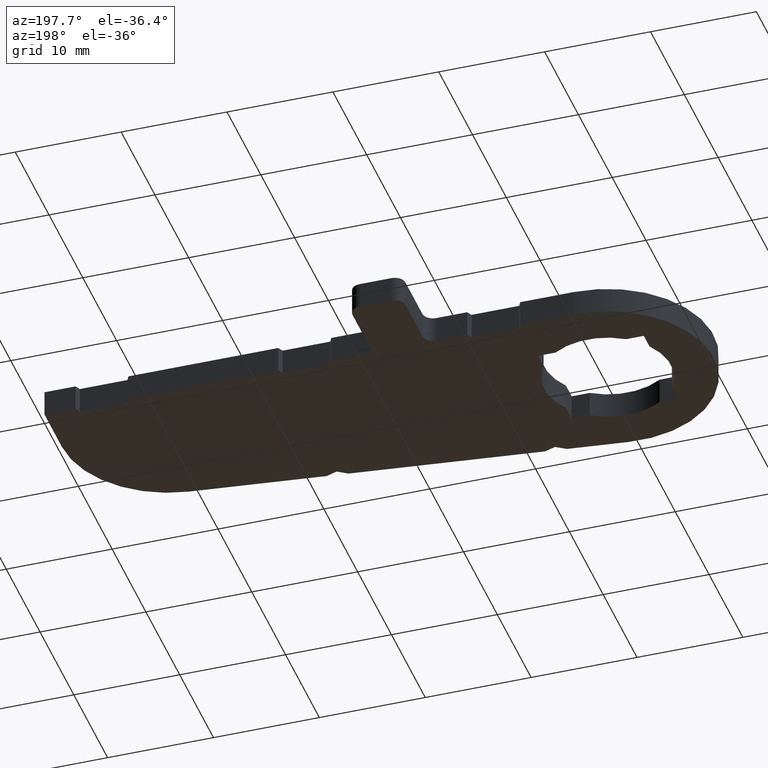
[diagram: clean part render]
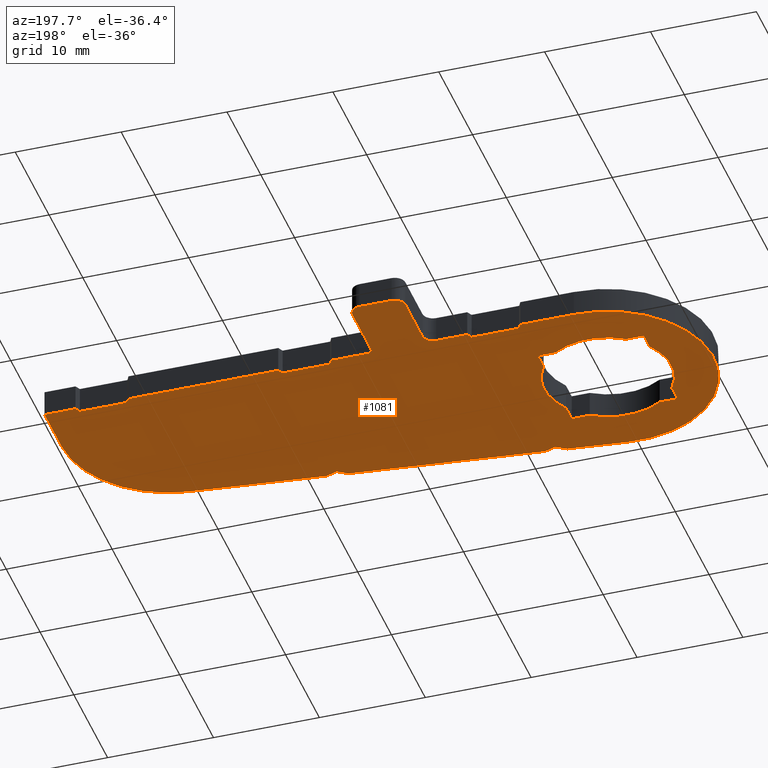
[diagram: same view with one face highlighted and labeled with its STEP entity id]
A machine part, auxiliary view. The second image highlights one B-rep face of the part: STEP entity #1081.
In plain terms, the highlighted planar face has unit normal (0, 0, 1).
Its self-contained STEP definition (entity closure, byte-faithful):
#7=CARTESIAN_POINT('',(46.825017492111371,9.499975159296298,-2.500000000000000));
#8=VERTEX_POINT('',#7);
#9=CARTESIAN_POINT('',(42.325017492111371,9.499974948719171,-2.500000000000000));
#10=VERTEX_POINT('',#9);
#11=CARTESIAN_POINT('',(46.825017492111371,9.499975159296298,-2.500000000000000));
#12=DIRECTION('',(-0.999999999999999,-0.000000046794917,0.0));
#13=VECTOR('',#12,4.500000000000004);
#14=LINE('',#11,#13);
#15=EDGE_CURVE('',#8,#10,#14,.T.);
#47=CARTESIAN_POINT('',(42.075017468713938,9.999974937021250,-2.500000000000000));
#48=VERTEX_POINT('',#47);
#49=CARTESIAN_POINT('',(42.325017492111371,9.499974948719171,-2.500000000000000));
#50=DIRECTION('',(-0.447213637353989,0.894427170072899,0.0));
#51=VECTOR('',#50,0.559016994375660);
#52=LINE('',#49,#51);
#53=EDGE_CURVE('',#10,#48,#52,.T.);
#78=CARTESIAN_POINT('',(27.925017457015471,9.999974274872727,-2.500000000000000));
#79=VERTEX_POINT('',#78);
#80=CARTESIAN_POINT('',(42.075017468713938,9.999974937021221,-2.500000000000000));
#81=DIRECTION('',(-0.999999999999999,-0.000000046794947,0.0));
#82=VECTOR('',#81,14.150000011698483);
#83=LINE('',#80,#82);
#84=EDGE_CURVE('',#48,#79,#83,.T.);
#109=CARTESIAN_POINT('',(27.675017480412905,9.499974263174124,-2.500000000000000));
#110=VERTEX_POINT('',#109);
#111=CARTESIAN_POINT('',(27.925017457015471,9.999974274872727,-2.500000000000000));
#112=DIRECTION('',(-0.447213553645438,-0.894427211927175,0.0));
#113=VECTOR('',#112,0.559016994374846);
#114=LINE('',#111,#113);
#115=EDGE_CURVE('',#79,#110,#114,.T.);
#140=CARTESIAN_POINT('',(23.175017480412905,9.499974052596997,-2.500000000000000));
#141=VERTEX_POINT('',#140);
#142=CARTESIAN_POINT('',(27.675017480412905,9.499974263174124,-2.500000000000000));
#143=DIRECTION('',(-0.999999999999999,-0.000000046794917,0.0));
#144=VECTOR('',#143,4.500000000000004);
#145=LINE('',#142,#144);
#146=EDGE_CURVE('',#110,#141,#145,.T.);
#171=CARTESIAN_POINT('',(22.925017457015471,9.999974040898167,-2.500000000000000));
#172=VERTEX_POINT('',#171);
#173=CARTESIAN_POINT('',(23.175017480412905,9.499974052596997,-2.500000000000000));
#174=DIRECTION('',(-0.447213637354640,0.894427170072574,0.0));
#175=VECTOR('',#174,0.559016994374846);
#176=LINE('',#173,#175);
#177=EDGE_CURVE('',#141,#172,#176,.T.);
#202=CARTESIAN_POINT('',(19.000017462864704,9.999973857228213,-2.500000000000000));
#203=VERTEX_POINT('',#202);
#204=CARTESIAN_POINT('',(22.925017457015471,9.999974040898167,-2.500000000000000));
#205=DIRECTION('',(-0.999999999999999,-0.000000046794893,0.0));
#206=VECTOR('',#205,3.924999994150771);
#207=LINE('',#204,#206);
#208=EDGE_CURVE('',#172,#203,#207,.T.);
#233=CARTESIAN_POINT('',(19.000017182095505,15.999973857228213,-2.500000000000000));
#234=VERTEX_POINT('',#233);
#235=CARTESIAN_POINT('',(19.000017462864704,9.999973857228213,-2.500000000000000));
#236=DIRECTION('',(-0.000000046794867,0.999999999999999,0.0));
#237=VECTOR('',#236,6.000000000000006);
#238=LINE('',#235,#237);
#239=EDGE_CURVE('',#203,#234,#238,.T.);
#264=CARTESIAN_POINT('',(18.000017135300411,16.999973810433346,-2.500000000000000));
#265=VERTEX_POINT('',#264);
#266=CARTESIAN_POINT('',(18.000017182095505,15.999973810433346,-2.500000000000000));
#267=DIRECTION('',(0.0,0.0,1.0));
#268=DIRECTION('',(1.0,0.0,0.0));
#269=AXIS2_PLACEMENT_3D('',#266,#267,#268);
#270=CIRCLE('',#269,1.0);
#271=EDGE_CURVE('',#234,#265,#270,.T.);
#297=CARTESIAN_POINT('',(15.000017135300411,16.999973670048746,-2.500000000000000));
#298=VERTEX_POINT('',#297);
#299=CARTESIAN_POINT('',(18.000017135300411,16.999973810433346,-2.500000000000000));
#300=DIRECTION('',(-0.999999999999999,-0.000000046794867,0.0));
#301=VECTOR('',#300,3.000000000000003);
#302=LINE('',#299,#301);
#303=EDGE_CURVE('',#265,#298,#302,.T.);
#328=CARTESIAN_POINT('',(14.000017182095505,15.999973623253879,-2.500000000000000));
#329=VERTEX_POINT('',#328);
#330=CARTESIAN_POINT('',(15.000017182095505,15.999973670048746,-2.500000000000000));
#331=DIRECTION('',(0.0,0.0,1.0));
#332=DIRECTION('',(1.0,0.0,0.0));
#333=AXIS2_PLACEMENT_3D('',#330,#331,#332);
#334=CIRCLE('',#333,1.0);
#335=EDGE_CURVE('',#298,#329,#334,.T.);
#361=CARTESIAN_POINT('',(14.000017416069838,10.999973623253879,-2.500000000000000));
#362=VERTEX_POINT('',#361);
#363=CARTESIAN_POINT('',(14.000017182095505,15.999973623253879,-2.500000000000000));
#364=DIRECTION('',(0.000000046794867,-0.999999999999999,0.0));
#365=VECTOR('',#364,5.000000000000005);
#366=LINE('',#363,#365);
#367=EDGE_CURVE('',#329,#362,#366,.T.);
#392=CARTESIAN_POINT('',(13.000017462864704,9.999973576459013,-2.500000000000000));
#393=VERTEX_POINT('',#392);
#394=CARTESIAN_POINT('',(13.000017416069838,10.999973576459013,-2.500000000000000));
#395=DIRECTION('',(0.0,0.0,-1.0));
#396=DIRECTION('',(1.0,0.0,0.0));
#397=AXIS2_PLACEMENT_3D('',#394,#395,#396);
#398=CIRCLE('',#397,1.0);
#399=EDGE_CURVE('',#362,#393,#398,.T.);
#425=CARTESIAN_POINT('',(10.075017468714165,9.999973439583926,-2.500000000000000));
#426=VERTEX_POINT('',#425);
#427=CARTESIAN_POINT('',(13.000017462864704,9.999973576459013,-2.500000000000000));
#428=DIRECTION('',(-0.999999999999999,-0.000000046794902,0.0));
#429=VECTOR('',#428,2.924999994150543);
#430=LINE('',#427,#429);
#431=EDGE_CURVE('',#393,#426,#430,.T.);
#456=CARTESIAN_POINT('',(9.825017492111599,9.499973427885095,-2.500000000000000));
#457=VERTEX_POINT('',#456);
#458=CARTESIAN_POINT('',(10.075017468714165,9.999973439583926,-2.500000000000000));
#459=DIRECTION('',(-0.447213553645275,-0.894427211927256,0.0));
#460=VECTOR('',#459,0.559016994375050);
#461=LINE('',#458,#460);
#462=EDGE_CURVE('',#426,#457,#461,.T.);
#487=CARTESIAN_POINT('',(5.325017492111599,9.499973217308195,-2.500000000000000));
#488=VERTEX_POINT('',#487);
#489=CARTESIAN_POINT('',(9.825017492111599,9.499973427885095,-2.500000000000000));
#490=DIRECTION('',(-0.999999999999999,-0.000000046794867,0.0));
#491=VECTOR('',#490,4.500000000000004);
#492=LINE('',#489,#491);
#493=EDGE_CURVE('',#457,#488,#492,.T.);
#518=CARTESIAN_POINT('',(5.075017468714165,9.999973205609365,-2.500000000000000));
#519=VERTEX_POINT('',#518);
#520=CARTESIAN_POINT('',(5.325017492111599,9.499973217308195,-2.500000000000000));
#521=DIRECTION('',(-0.447213637354640,0.894427170072574,0.0));
#522=VECTOR('',#521,0.559016994374846);
#523=LINE('',#520,#522);
#524=EDGE_CURVE('',#488,#519,#523,.T.);
#549=CARTESIAN_POINT('',(0.000017462864719,9.999972968125292,-2.500000000000000));
#550=VERTEX_POINT('',#549);
#551=CARTESIAN_POINT('',(5.075017468714165,9.999973205609365,-2.500000000000000));
#552=DIRECTION('',(-0.999999999999999,-0.000000046794891,0.0));
#553=VECTOR('',#552,5.075000005849466);
#554=LINE('',#551,#553);
#555=EDGE_CURVE('',#519,#550,#554,.T.);
#580=CARTESIAN_POINT('',(1.207432200476475,-9.926866951074373,-2.500000000000000));
#581=VERTEX_POINT('',#580);
#582=CARTESIAN_POINT('',(0.000017930813826,-0.000027031874708,-2.500000000000000));
#583=DIRECTION('',(0.0,0.0,1.0));
#584=DIRECTION('',(1.0,0.0,0.0));
#585=AXIS2_PLACEMENT_3D('',#582,#583,#584);
#586=CIRCLE('',#585,10.0);
#587=EDGE_CURVE('',#550,#581,#586,.T.);
#613=CARTESIAN_POINT('',(6.807334365896210,-9.245743669317164,-2.500000000000000));
#614=VERTEX_POINT('',#613);
#615=CARTESIAN_POINT('',(1.207432200476475,-9.926866951074373,-2.500000000000000));
#616=DIRECTION('',(0.992683991919963,0.120741426966250,0.0));
#617=VECTOR('',#616,5.641173032909157);
#618=LINE('',#615,#617);
#619=EDGE_CURVE('',#581,#614,#618,.T.);
#644=CARTESIAN_POINT('',(7.739647644330638,-8.628660246392343,-2.500000000000000));
#645=VERTEX_POINT('',#644);
#646=CARTESIAN_POINT('',(6.807334365896210,-9.245743669317164,-2.500000000000000));
#647=DIRECTION('',(0.833886346764108,0.551936192580638,0.0));
#648=VECTOR('',#647,1.118033988747107);
#649=LINE('',#646,#648);
#650=EDGE_CURVE('',#614,#645,#649,.T.);
#675=CARTESIAN_POINT('',(8.792702349735734,-9.004260815384725,-2.500000000000000));
#676=VERTEX_POINT('',#675);
#677=CARTESIAN_POINT('',(7.739647644330638,-8.628660246392343,-2.500000000000000));
#678=DIRECTION('',(0.941880762122971,-0.335947361862914,0.0));
#679=VECTOR('',#678,1.118033988749916);
#680=LINE('',#677,#679);
#681=EDGE_CURVE('',#645,#676,#680,.T.);
#706=CARTESIAN_POINT('',(26.661014204275091,-6.830915129997067,-2.500000000000000));
#707=VERTEX_POINT('',#706);
#708=CARTESIAN_POINT('',(8.792702349735734,-9.004260815384725,-2.500000000000000));
#709=DIRECTION('',(0.992683991919979,0.120741426966118,0.0));
#710=VECTOR('',#709,17.999999999979579);
#711=LINE('',#708,#710);
#712=EDGE_CURVE('',#676,#707,#711,.T.);
#737=CARTESIAN_POINT('',(27.593327482710627,-6.213831707071734,-2.500000000000000));
#738=VERTEX_POINT('',#737);
#739=CARTESIAN_POINT('',(26.661014204275091,-6.830915129997067,-2.500000000000000));
#740=DIRECTION('',(0.833886346764199,0.551936192580500,0.0));
#741=VECTOR('',#740,1.118033988748313);
#742=LINE('',#739,#741);
#743=EDGE_CURVE('',#707,#738,#742,.T.);
#768=CARTESIAN_POINT('',(28.646382188115744,-6.589432276066276,-2.500000000000000));
#769=VERTEX_POINT('',#768);
#770=CARTESIAN_POINT('',(27.593327482710627,-6.213831707071734,-2.500000000000000));
#771=DIRECTION('',(0.941880762122903,-0.335947361863103,0.0));
#772=VECTOR('',#771,1.118033988752078);
#773=LINE('',#770,#772);
#774=EDGE_CURVE('',#738,#769,#773,.T.);
#799=CARTESIAN_POINT('',(41.207431972787404,-5.061615682325908,-2.500000000000000));
#800=VERTEX_POINT('',#799);
#801=CARTESIAN_POINT('',(28.646382188115744,-6.589432276066276,-2.500000000000000));
#802=DIRECTION('',(0.992683991919960,0.120741426966280,0.0));
#803=VECTOR('',#802,12.653623798624185);
#804=LINE('',#801,#803);
#805=EDGE_CURVE('',#769,#800,#804,.T.);
#830=CARTESIAN_POINT('',(50.000017703124271,4.865224704818502,-2.500000000000000));
#831=VERTEX_POINT('',#830);
#832=CARTESIAN_POINT('',(40.000017703124300,4.865224236873645,-2.500000000000001));
#833=DIRECTION('',(0.0,0.0,1.000000000000000));
#834=DIRECTION('',(0.120741426966311,-0.992683991919956,0.0));
#835=AXIS2_PLACEMENT_3D('',#832,#833,#834);
#836=CIRCLE('',#835,9.999999999999993);
#837=EDGE_CURVE('',#800,#831,#836,.T.);
#863=CARTESIAN_POINT('',(50.000017703124271,9.999975307860666,-2.500000000000000));
#864=VERTEX_POINT('',#863);
#865=CARTESIAN_POINT('',(50.000017703124271,4.865224704818502,-2.500000000000000));
#866=DIRECTION('',(0.0,1.0,0.0));
#867=VECTOR('',#866,5.134750603042164);
#868=LINE('',#865,#867);
#869=EDGE_CURVE('',#831,#864,#868,.T.);
#894=CARTESIAN_POINT('',(47.075017468713938,9.999975170989387,-2.500000000000000));
#895=VERTEX_POINT('',#894);
#896=CARTESIAN_POINT('',(50.000017703124279,9.999975307860666,-2.500000000000000));
#897=DIRECTION('',(-0.999999999999999,-0.000000046793596,0.0));
#898=VECTOR('',#897,2.925000234410344);
#899=LINE('',#896,#898);
#900=EDGE_CURVE('',#864,#895,#899,.T.);
#925=CARTESIAN_POINT('',(47.075017468713938,9.999975170989387,-2.500000000000000));
#926=DIRECTION('',(-0.447213553649383,-0.894427211925202,0.0));
#927=VECTOR('',#926,0.559016994369915);
#928=LINE('',#925,#927);
#929=EDGE_CURVE('',#895,#8,#928,.T.);
#942=CARTESIAN_POINT('',(-16.000102047022892,-12.700147116663885,-2.500000000000000));
#943=DIRECTION('',(0.0,0.0,1.0));
#944=DIRECTION('',(1.0,0.0,0.0));
#945=AXIS2_PLACEMENT_3D('',#942,#943,#944);
#946=PLANE('',#945);
#947=ORIENTED_EDGE('',*,*,#929,.F.);
#948=ORIENTED_EDGE('',*,*,#900,.F.);
#949=ORIENTED_EDGE('',*,*,#869,.F.);
#950=ORIENTED_EDGE('',*,*,#837,.F.);
#951=ORIENTED_EDGE('',*,*,#805,.F.);
#952=ORIENTED_EDGE('',*,*,#774,.F.);
#953=ORIENTED_EDGE('',*,*,#743,.F.);
#954=ORIENTED_EDGE('',*,*,#712,.F.);
#955=ORIENTED_EDGE('',*,*,#681,.F.);
#956=ORIENTED_EDGE('',*,*,#650,.F.);
#957=ORIENTED_EDGE('',*,*,#619,.F.);
#958=ORIENTED_EDGE('',*,*,#587,.F.);
#959=ORIENTED_EDGE('',*,*,#555,.F.);
#960=ORIENTED_EDGE('',*,*,#524,.F.);
#961=ORIENTED_EDGE('',*,*,#493,.F.);
#962=ORIENTED_EDGE('',*,*,#462,.F.);
#963=ORIENTED_EDGE('',*,*,#431,.F.);
#964=ORIENTED_EDGE('',*,*,#399,.F.);
#965=ORIENTED_EDGE('',*,*,#367,.F.);
#966=ORIENTED_EDGE('',*,*,#335,.F.);
#967=ORIENTED_EDGE('',*,*,#303,.F.);
#968=ORIENTED_EDGE('',*,*,#271,.F.);
#969=ORIENTED_EDGE('',*,*,#239,.F.);
#970=ORIENTED_EDGE('',*,*,#208,.F.);
#971=ORIENTED_EDGE('',*,*,#177,.F.);
#972=ORIENTED_EDGE('',*,*,#146,.F.);
#973=ORIENTED_EDGE('',*,*,#115,.F.);
#974=ORIENTED_EDGE('',*,*,#84,.F.);
#975=ORIENTED_EDGE('',*,*,#53,.F.);
#976=ORIENTED_EDGE('',*,*,#15,.F.);
#977=EDGE_LOOP('',(#947,#948,#949,#950,#951,#952,#953,#954,#955,#956,#957,#958,#959,#960,#961,#962,#963,#964,#965,#966,#967,#968,#969,#970,#971,#972,#973,#974,#975,#976));
#978=FACE_OUTER_BOUND('',#977,.T.);
#979=CARTESIAN_POINT('',(-5.000000233506611,4.989999766025477,-2.500000000000000));
#980=VERTEX_POINT('',#979);
#981=CARTESIAN_POINT('',(-3.331651592688786,4.989999766025477,-2.500000000000000));
#982=VERTEX_POINT('',#981);
#983=CARTESIAN_POINT('',(-5.000000233506611,4.989999766025477,-2.500000000000000));
#984=DIRECTION('',(1.0,0.0,0.0));
#985=VECTOR('',#984,1.668348640817832);
#986=LINE('',#983,#985);
#987=EDGE_CURVE('',#980,#982,#986,.T.);
#988=ORIENTED_EDGE('',*,*,#987,.F.);
#989=CARTESIAN_POINT('',(-5.000000233506611,3.316624438330905,-2.500000000000000));
#990=VERTEX_POINT('',#989);
#991=CARTESIAN_POINT('',(-5.000000233506611,3.316624438330910,-2.500000000000000));
#992=DIRECTION('',(0.0,1.0,0.0));
#993=VECTOR('',#992,1.673375327694567);
#994=LINE('',#991,#993);
#995=EDGE_CURVE('',#990,#980,#994,.T.);
#996=ORIENTED_EDGE('',*,*,#995,.F.);
#997=CARTESIAN_POINT('',(-5.000000233506611,-3.316624438330905,-2.500000000000000));
#998=VERTEX_POINT('',#997);
#999=CARTESIAN_POINT('',(0.0,0.0,-2.500000000000000));
#1000=DIRECTION('',(0.0,0.0,-1.0));
#1001=DIRECTION('',(1.0,0.0,0.0));
#1002=AXIS2_PLACEMENT_3D('',#999,#1000,#1001);
#1003=CIRCLE('',#1002,5.999999999999999);
#1004=EDGE_CURVE('',#998,#990,#1003,.T.);
#1005=ORIENTED_EDGE('',*,*,#1004,.F.);
#1006=CARTESIAN_POINT('',(-5.000000233506611,-5.009999766025373,-2.500000000000000));
#1007=VERTEX_POINT('',#1006);
#1008=CARTESIAN_POINT('',(-5.000000233506611,-5.009999766025373,-2.500000000000000));
#1009=DIRECTION('',(0.0,1.0,0.0));
#1010=VECTOR('',#1009,1.693375327694463);
#1011=LINE('',#1008,#1010);
#1012=EDGE_CURVE('',#1007,#998,#1011,.T.);
#1013=ORIENTED_EDGE('',*,*,#1012,.F.);
#1014=CARTESIAN_POINT('',(-3.301500014300430,-5.009999766025373,-2.500000000000000));
#1015=VERTEX_POINT('',#1014);
#1016=CARTESIAN_POINT('',(-3.301500014300425,-5.009999766025373,-2.500000000000000));
#1017=DIRECTION('',(-1.0,0.0,0.0));
#1018=VECTOR('',#1017,1.698500219206187);
#1019=LINE('',#1016,#1018);
#1020=EDGE_CURVE('',#1015,#1007,#1019,.T.);
#1021=ORIENTED_EDGE('',*,*,#1020,.F.);
#1022=CARTESIAN_POINT('',(3.301500014300423,-5.009999766025373,-2.500000000000000));
#1023=VERTEX_POINT('',#1022);
#1024=CARTESIAN_POINT('',(0.0,0.0,-2.500000000000000));
#1025=DIRECTION('',(0.0,0.0,-1.0));
#1026=DIRECTION('',(1.0,0.0,0.0));
#1027=AXIS2_PLACEMENT_3D('',#1024,#1025,#1026);
#1028=CIRCLE('',#1027,5.999999999999999);
#1029=EDGE_CURVE('',#1023,#1015,#1028,.T.);
#1030=ORIENTED_EDGE('',*,*,#1029,.F.);
#1031=CARTESIAN_POINT('',(5.000000234442574,-5.009999766025373,-2.500000000000000));
#1032=VERTEX_POINT('',#1031);
#1033=CARTESIAN_POINT('',(5.000000234442574,-5.009999766025373,-2.500000000000000));
#1034=DIRECTION('',(-1.0,0.0,0.0));
#1035=VECTOR('',#1034,1.698500220142150);
#1036=LINE('',#1033,#1035);
#1037=EDGE_CURVE('',#1032,#1023,#1036,.T.);
#1038=ORIENTED_EDGE('',*,*,#1037,.F.);
#1039=CARTESIAN_POINT('',(5.000000234442574,-3.316624436919881,-2.500000000000000));
#1040=VERTEX_POINT('',#1039);
#1041=CARTESIAN_POINT('',(5.000000234442574,-3.316624436919895,-2.500000000000000));
#1042=DIRECTION('',(0.0,-1.0,0.0));
#1043=VECTOR('',#1042,1.693375329105479);
#1044=LINE('',#1041,#1043);
#1045=EDGE_CURVE('',#1040,#1032,#1044,.T.);
#1046=ORIENTED_EDGE('',*,*,#1045,.F.);
#1047=CARTESIAN_POINT('',(5.000000234442574,3.316624436919881,-2.500000000000000));
#1048=VERTEX_POINT('',#1047);
#1049=CARTESIAN_POINT('',(0.0,0.0,-2.500000000000000));
#1050=DIRECTION('',(0.0,0.0,-1.0));
#1051=DIRECTION('',(1.0,0.0,0.0));
#1052=AXIS2_PLACEMENT_3D('',#1049,#1050,#1051);
#1053=CIRCLE('',#1052,5.999999999999999);
#1054=EDGE_CURVE('',#1048,#1040,#1053,.T.);
#1055=ORIENTED_EDGE('',*,*,#1054,.F.);
#1056=CARTESIAN_POINT('',(5.000000234442574,4.989999766025477,-2.500000000000000));
#1057=VERTEX_POINT('',#1056);
#1058=CARTESIAN_POINT('',(5.000000234442574,4.989999766025477,-2.500000000000000));
#1059=DIRECTION('',(0.0,-1.0,0.0));
#1060=VECTOR('',#1059,1.673375329105583);
#1061=LINE('',#1058,#1060);
#1062=EDGE_CURVE('',#1057,#1048,#1061,.T.);
#1063=ORIENTED_EDGE('',*,*,#1062,.F.);
#1064=CARTESIAN_POINT('',(3.331651592688779,4.989999766025477,-2.500000000000000));
#1065=VERTEX_POINT('',#1064);
#1066=CARTESIAN_POINT('',(3.331651592688779,4.989999766025477,-2.500000000000000));
#1067=DIRECTION('',(1.0,0.0,0.0));
#1068=VECTOR('',#1067,1.668348641753795);
#1069=LINE('',#1066,#1068);
#1070=EDGE_CURVE('',#1065,#1057,#1069,.T.);
#1071=ORIENTED_EDGE('',*,*,#1070,.F.);
#1072=CARTESIAN_POINT('',(0.0,0.0,-2.500000000000000));
#1073=DIRECTION('',(0.0,0.0,-1.0));
#1074=DIRECTION('',(1.0,0.0,0.0));
#1075=AXIS2_PLACEMENT_3D('',#1072,#1073,#1074);
#1076=CIRCLE('',#1075,5.999999999999999);
#1077=EDGE_CURVE('',#982,#1065,#1076,.T.);
#1078=ORIENTED_EDGE('',*,*,#1077,.F.);
#1079=EDGE_LOOP('',(#988,#996,#1005,#1013,#1021,#1030,#1038,#1046,#1055,#1063,#1071,#1078));
#1080=FACE_BOUND('',#1079,.T.);
#1081=ADVANCED_FACE('',(#978,#1080),#946,.F.);